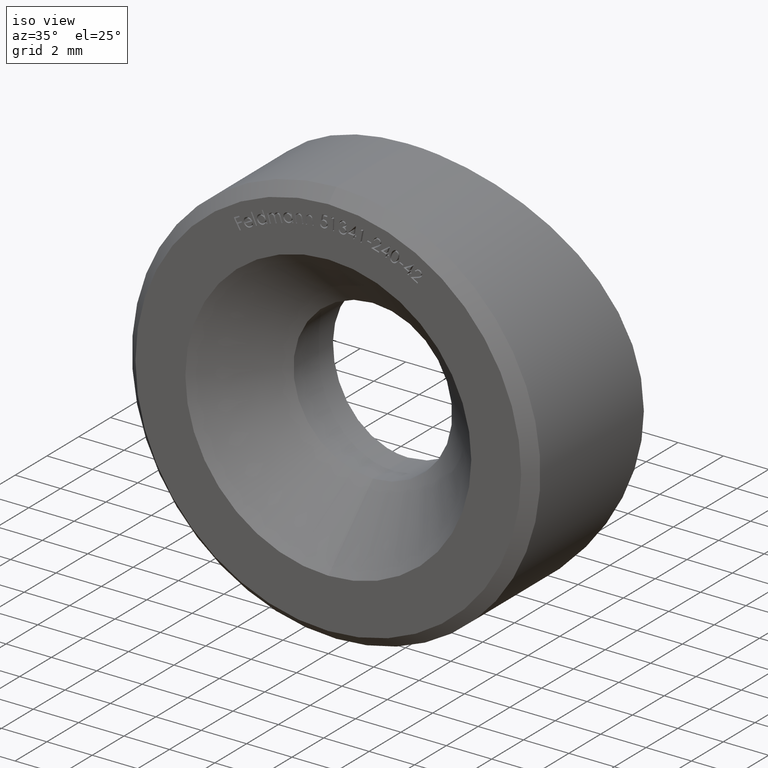
[diagram: clean part render]
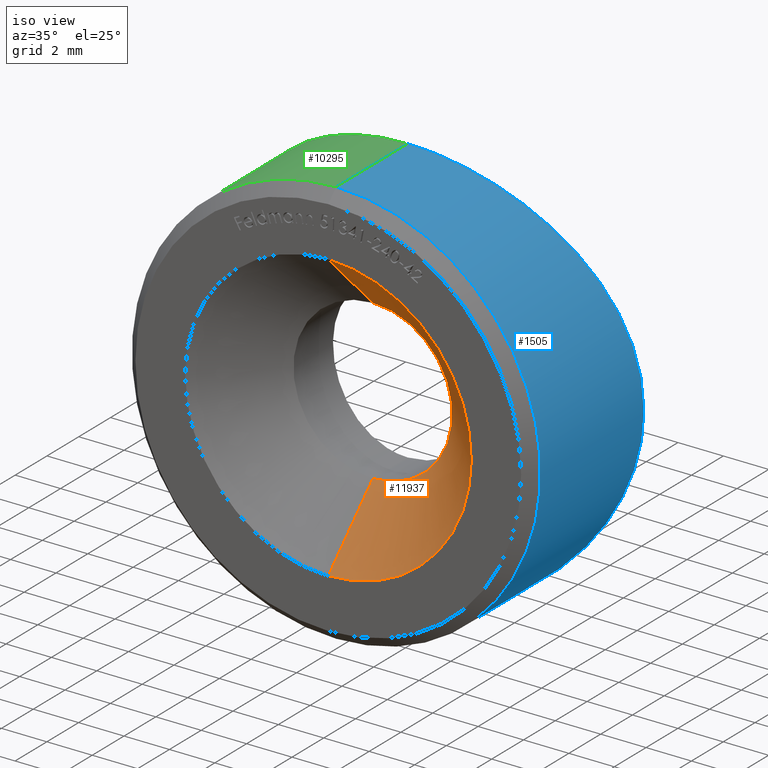
[diagram: same view with three faces highlighted in distinct colors, each labeled with its STEP entity id]
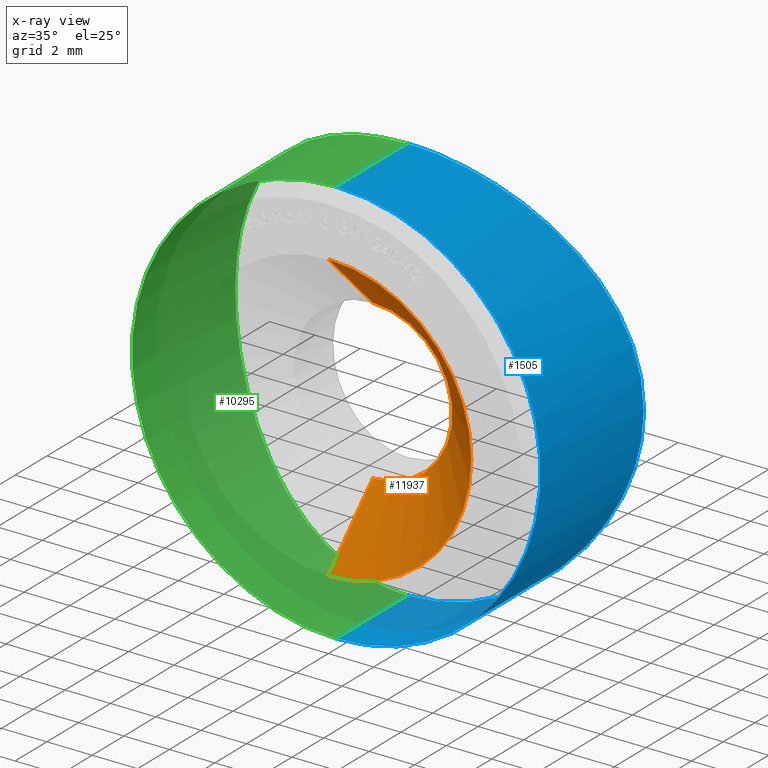
[diagram: x-ray of the same camera — body ghosted, the three highlighted faces saturated]
A machine part, iso view with three faces highlighted in distinct colors.
The next image is the same camera in x-ray (body ghosted, the three faces saturated) — at least one of them is partly hidden behind the body in this view.
Their STEP definitions:

[orange] entity #11937 — the highlighted conical surface has half-angle 45 deg.
#339 = AXIS2_PLACEMENT_3D ( 'NONE', #5555, #2351, #9475 ) ;
#728 = DIRECTION ( 'NONE',  ( 0.000000000000000000, 0.000000000000000000, -1.000000000000000000 ) ) ;
#1015 = EDGE_CURVE ( 'NONE', #3526, #12136, #8560, .T. ) ;
#1900 = CARTESIAN_POINT ( 'NONE',  ( 7.715274834628325378E-16, -8.673617379884035472E-16, 6.299999999999999822 ) ) ;
#1969 = CARTESIAN_POINT ( 'NONE',  ( 7.715274834628325378E-16, -8.673617379884035472E-16, 6.299999999999999822 ) ) ;
#1991 = CIRCLE ( 'NONE', #2304, 3.500000000000000000 ) ;
#2304 = AXIS2_PLACEMENT_3D ( 'NONE', #12708, #11739, #3653 ) ;
#2351 = DIRECTION ( 'NONE',  ( -0.000000000000000000, -1.000000000000000000, -0.000000000000000000 ) ) ;
#2744 = DIRECTION ( 'NONE',  ( -0.000000000000000000, -1.000000000000000000, -0.000000000000000000 ) ) ;
#3092 = EDGE_CURVE ( 'NONE', #7041, #3526, #3275, .T. ) ;
#3275 = LINE ( 'NONE', #13023, #5340 ) ;
#3526 = VERTEX_POINT ( 'NONE', #7931 ) ;
#3527 = CARTESIAN_POINT ( 'NONE',  ( 0.000000000000000000, 2.799999999999997602, -3.500000000000000000 ) ) ;
#3653 = DIRECTION ( 'NONE',  ( 0.000000000000000000, 0.000000000000000000, -1.000000000000000000 ) ) ;
#4409 = EDGE_LOOP ( 'NONE', ( #10183, #10585, #9485, #12491 ) ) ;
#4804 = CONICAL_SURFACE ( 'NONE', #9146, 6.299999999999999822, 0.7853981633974485010 ) ;
#5340 = VECTOR ( 'NONE', #13113, 999.9999999999998863 ) ;
#5555 = CARTESIAN_POINT ( 'NONE',  ( 0.000000000000000000, -8.673617379884035472E-16, 0.000000000000000000 ) ) ;
#6833 = EDGE_CURVE ( 'NONE', #9547, #12136, #10543, .T. ) ;
#7041 = VERTEX_POINT ( 'NONE', #3527 ) ;
#7931 = CARTESIAN_POINT ( 'NONE',  ( 0.000000000000000000, -8.673617379884035472E-16, -6.299999999999999822 ) ) ;
#8560 = CIRCLE ( 'NONE', #339, 6.299999999999999822 ) ;
#8828 = CARTESIAN_POINT ( 'NONE',  ( 0.000000000000000000, -8.673617379884035472E-16, 0.000000000000000000 ) ) ;
#9106 = FACE_OUTER_BOUND ( 'NONE', #4409, .T. ) ;
#9146 = AXIS2_PLACEMENT_3D ( 'NONE', #8828, #2744, #728 ) ;
#9475 = DIRECTION ( 'NONE',  ( 0.000000000000000000, 0.000000000000000000, -1.000000000000000000 ) ) ;
#9485 = ORIENTED_EDGE ( 'NONE', *, *, #3092, .T. ) ;
#9547 = VERTEX_POINT ( 'NONE', #11369 ) ;
#10183 = ORIENTED_EDGE ( 'NONE', *, *, #6833, .F. ) ;
#10543 = LINE ( 'NONE', #1969, #12115 ) ;
#10585 = ORIENTED_EDGE ( 'NONE', *, *, #13015, .F. ) ;
#10986 = DIRECTION ( 'NONE',  ( 8.659560562354936556E-17, -0.7071067811865473507, 0.7071067811865477948 ) ) ;
#11369 = CARTESIAN_POINT ( 'NONE',  ( 4.286263797015736595E-16, 2.799999999999997602, 3.500000000000000000 ) ) ;
#11739 = DIRECTION ( 'NONE',  ( -0.000000000000000000, -1.000000000000000000, -0.000000000000000000 ) ) ;
#11937 = ADVANCED_FACE ( 'NONE', ( #9106 ), #4804, .F. ) ;
#12115 = VECTOR ( 'NONE', #10986, 999.9999999999998863 ) ;
#12136 = VERTEX_POINT ( 'NONE', #1900 ) ;
#12491 = ORIENTED_EDGE ( 'NONE', *, *, #1015, .T. ) ;
#12708 = CARTESIAN_POINT ( 'NONE',  ( 0.000000000000000000, 2.799999999999997602, 0.000000000000000000 ) ) ;
#13015 = EDGE_CURVE ( 'NONE', #7041, #9547, #1991, .T. ) ;
#13023 = CARTESIAN_POINT ( 'NONE',  ( 0.000000000000000000, -8.673617379884035472E-16, -6.299999999999999822 ) ) ;
#13113 = DIRECTION ( 'NONE',  ( 0.000000000000000000, -0.7071067811865473507, -0.7071067811865477948 ) ) ;

[blue] entity #1505 — the highlighted cylindrical surface (partial cylindrical patch) has radius 9 mm, axis along (-0, -1, -0).
#247 = EDGE_LOOP ( 'NONE', ( #4486, #2974, #9532, #7672 ) ) ;
#590 = CYLINDRICAL_SURFACE ( 'NONE', #8822, 9.000000000000000000 ) ;
#652 = CARTESIAN_POINT ( 'NONE',  ( 5.950894307444039022, 5.847787092032352696, 6.776770896051599102 ) ) ;
#1425 = CARTESIAN_POINT ( 'NONE',  ( 3.201236851661946936, 5.241277928993054225, -8.416586300377323582 ) ) ;
#1505 = ADVANCED_FACE ( 'NONE', ( #10984 ), #590, .T. ) ;
#1558 = CARTESIAN_POINT ( 'NONE',  ( 8.533385061147304995, 6.791675246480365580, 2.921161065399778156 ) ) ;
#1640 = DIRECTION ( 'NONE',  ( -0.000000000000000000, -1.000000000000000000, -0.000000000000000000 ) ) ;
#1684 = VECTOR ( 'NONE', #11888, 1000.000000000000000 ) ;
#1685 = CARTESIAN_POINT ( 'NONE',  ( 3.736670627740368289, 5.330108033593750960, 8.192869673815865283 ) ) ;
#1887 = LINE ( 'NONE', #7730, #4292 ) ;
#1910 = CARTESIAN_POINT ( 'NONE',  ( 1.102182119232617714E-15, 0.5000000000000056621, 9.000000000000000000 ) ) ;
#2322 = LINE ( 'NONE', #2588, #1684 ) ;
#2356 = DIRECTION ( 'NONE',  ( -0.000000000000000000, -1.000000000000000000, -0.000000000000000000 ) ) ;
#2401 = CARTESIAN_POINT ( 'NONE',  ( 4.531352901498304497, 5.483878924124729437, -7.798104117224855081 ) ) ;
#2534 = CARTESIAN_POINT ( 'NONE',  ( 7.313069460956390877, 6.300514150201308894, -5.254070590124756635 ) ) ;
#2578 = CARTESIAN_POINT ( 'NONE',  ( 8.765216953880976547, 6.896759034376214181, -2.063786212828273570 ) ) ;
#2588 = CARTESIAN_POINT ( 'NONE',  ( 0.000000000000000000, 12.00000000000000000, -9.000000000000000000 ) ) ;
#2616 = CARTESIAN_POINT ( 'NONE',  ( 8.985476887790628808, 6.998378257453279794, 0.5925493789659639354 ) ) ;
#2670 = CARTESIAN_POINT ( 'NONE',  ( 8.079162393224693872, 6.598285831224371734, -4.008667575377401704 ) ) ;
#2974 = ORIENTED_EDGE ( 'NONE', *, *, #10322, .T. ) ;
#3034 = CIRCLE ( 'NONE', #6975, 9.000000000000000000 ) ;
#3301 = DIRECTION ( 'NONE',  ( 0.000000000000000000, 0.000000000000000000, 1.000000000000000000 ) ) ;
#3345 = CARTESIAN_POINT ( 'NONE',  ( 0.000000000000000000, 0.5000000000000056621, 0.000000000000000000 ) ) ;
#3427 = CARTESIAN_POINT ( 'NONE',  ( 5.498166174509200310, 5.724039982712047170, -7.131299142067265784 ) ) ;
#3529 = CARTESIAN_POINT ( 'NONE',  ( 6.768251941356695056, 6.108484183741391682, -5.939311286811442159 ) ) ;
#3533 = DIRECTION ( 'NONE',  ( 0.000000000000000000, 0.000000000000000000, -1.000000000000000000 ) ) ;
#3666 = CARTESIAN_POINT ( 'NONE',  ( 5.503122217084857937, 5.720587813788839071, 7.145554771257088156 ) ) ;
#4218 = DIRECTION ( 'NONE',  ( -0.000000000000000000, 1.000000000000000000, -0.000000000000000000 ) ) ;
#4286 = CARTESIAN_POINT ( 'NONE',  ( -8.711213837323821627E-17, 5.000000000000000000, -9.000000000000000000 ) ) ;
#4292 = VECTOR ( 'NONE', #1640, 1000.000000000000000 ) ;
#4486 = ORIENTED_EDGE ( 'NONE', *, *, #10198, .T. ) ;
#4549 = CARTESIAN_POINT ( 'NONE',  ( 7.803510929205667246, 6.485353026589257830, -4.522188408825448924 ) ) ;
#4599 = CARTESIAN_POINT ( 'NONE',  ( 4.773436371815511059, 5.542871094669145293, 7.635452310474521553 ) ) ;
#4637 = EDGE_CURVE ( 'NONE', #12973, #6302, #2322, .T. ) ;
#4644 = CARTESIAN_POINT ( 'NONE',  ( 0.5933890720346679526, 5.000000000000000000, 9.000000000000001776 ) ) ;
#4725 = CARTESIAN_POINT ( 'NONE',  ( 8.940731937358895820, 6.977100309098893227, -1.190075437836061623 ) ) ;
#5424 = CARTESIAN_POINT ( 'NONE',  ( 2.063687799209020568, 5.098674121252354752, -8.765201723261311528 ) ) ;
#5557 = CARTESIAN_POINT ( 'NONE',  ( 8.926111635704428338, 6.970709750180468234, 1.189302625270156177 ) ) ;
#5602 = CARTESIAN_POINT ( 'NONE',  ( 8.417399978128177196, 6.742292184308384506, -3.198897901575217695 ) ) ;
#5644 = CARTESIAN_POINT ( 'NONE',  ( 1.102205765333479302E-15, 5.000000000000001776, 9.000000000000000000 ) ) ;
#5694 = CARTESIAN_POINT ( 'NONE',  ( 9.000197485660869745, 7.005301636450295355, 0.2915881291376411499 ) ) ;
#5736 = CARTESIAN_POINT ( 'NONE',  ( 7.137730573692684821, 6.236757668303949842, -5.489759116818982321 ) ) ;
#5833 = CARTESIAN_POINT ( 'NONE',  ( 1.102205765333479302E-15, 5.000000000000001776, 9.000000000000000000 ) ) ;
#6302 = VERTEX_POINT ( 'NONE', #11376 ) ;
#6704 = CARTESIAN_POINT ( 'NONE',  ( 8.706750696824439473, 6.869998219929486893, 2.354395332776095806 ) ) ;
#6741 = CARTESIAN_POINT ( 'NONE',  ( 4.519225296665156044, 5.485597223729620886, 7.788647210821147304 ) ) ;
#6975 = AXIS2_PLACEMENT_3D ( 'NONE', #3345, #4218, #3301 ) ;
#7211 = VERTEX_POINT ( 'NONE', #1910 ) ;
#7370 = CARTESIAN_POINT ( 'NONE',  ( -8.711213837323821627E-17, 5.000000000000000000, -9.000000000000000000 ) ) ;
#7638 = CARTESIAN_POINT ( 'NONE',  ( 8.691438267407118445, 6.863300288605558741, -2.355182090629234448 ) ) ;
#7672 = ORIENTED_EDGE ( 'NONE', *, *, #4637, .F. ) ;
#7730 = CARTESIAN_POINT ( 'NONE',  ( 1.102182119232617714E-15, 12.00000000000000000, 9.000000000000000000 ) ) ;
#7780 = CARTESIAN_POINT ( 'NONE',  ( 4.001315330663515191, 5.379352668944862970, 8.066963386631146093 ) ) ;
#8036 = VERTEX_POINT ( 'NONE', #5833 ) ;
#8348 = EDGE_CURVE ( 'NONE', #7211, #6302, #3034, .T. ) ;
#8402 = CARTESIAN_POINT ( 'NONE',  ( 0.6023680047795308967, 5.000000000000001776, -9.000000000000005329 ) ) ;
#8487 = CARTESIAN_POINT ( 'NONE',  ( 2.920474601856164476, 5.200163174101231967, -8.518185119866812371 ) ) ;
#8536 = CARTESIAN_POINT ( 'NONE',  ( 4.016827951074798619, 5.376722493035036798, -8.075423365992350000 ) ) ;
#8626 = CARTESIAN_POINT ( 'NONE',  ( 6.573466969556617023, 6.043719117738677760, -6.154151738390522652 ) ) ;
#8664 = CARTESIAN_POINT ( 'NONE',  ( 2.362258398571402296, 5.123755013154033477, 8.705150679785440104 ) ) ;
#8822 = AXIS2_PLACEMENT_3D ( 'NONE', #12675, #2356, #3533 ) ;
#9287 = B_SPLINE_CURVE_WITH_KNOTS ( 'NONE', 3,
 ( #7370, #8402, #9476, #5424, #12542, #8487, #1425, #8536, #2401, #10620, #3427, #11831, #10840, #8626, #3529, #5736, #2534, #4549, #2670, #5602, #10671, #7638, #2578, #4725, #12844, #5694, #2616, #5557, #9716, #6704, #1558, #11750, #10794, #11658, #10751, #652, #3666, #4599, #6741, #7780, #1685, #9797, #8664, #12669, #4644, #5644 ),
 .UNSPECIFIED., .F., .F.,
 ( 4, 2, 2, 2, 2, 2, 2, 2, 2, 2, 2, 2, 2, 2, 2, 2, 2, 2, 2, 2, 2, 2, 4 ),
 ( 1.410750742896341594E-19, 0.001780017036675978501, 0.002670025555013966993, 0.003560034073351955701, 0.005340051110027929648, 0.006230059628365916188, 0.007120068146703903596, 0.008010076665041889268, 0.008900085183379875808, 0.01068010222005584889, 0.01157011073839383543, 0.01246011925673182370, 0.01424013629340780025, 0.01513014481174578853, 0.01602015333008377854, 0.01780017036675975509, 0.01958018740343573164, 0.02136020444011170819, 0.02314022147678768127, 0.02403022999512566954, 0.02492023851346365781, 0.02670025555013962743, 0.02848027258681560051 ),
 .UNSPECIFIED. ) ;
#9476 = CARTESIAN_POINT ( 'NONE',  ( 1.193336431064577763, 5.025605254054330118, -8.940146670528569928 ) ) ;
#9532 = ORIENTED_EDGE ( 'NONE', *, *, #8348, .T. ) ;
#9716 = CARTESIAN_POINT ( 'NONE',  ( 8.881823224659211036, 6.950134147624567049, 1.483538835291111191 ) ) ;
#9797 = CARTESIAN_POINT ( 'NONE',  ( 2.925613582454151373, 5.195686694278657036, 8.531357960814737851 ) ) ;
#10198 = EDGE_CURVE ( 'NONE', #12973, #8036, #9287, .T. ) ;
#10322 = EDGE_CURVE ( 'NONE', #8036, #7211, #1887, .T. ) ;
#10620 = CARTESIAN_POINT ( 'NONE',  ( 5.261251621140059953, 5.661695803545239158, -7.307881232908767899 ) ) ;
#10671 = CARTESIAN_POINT ( 'NONE',  ( 8.517504256587193012, 6.786057172129877912, -2.922345474988994329 ) ) ;
#10751 = CARTESIAN_POINT ( 'NONE',  ( 6.773059061270842562, 6.106434257152071332, 5.955118620857086320 ) ) ;
#10794 = CARTESIAN_POINT ( 'NONE',  ( 7.798571145882971400, 6.483440302711156455, 4.530130009987125561 ) ) ;
#10840 = CARTESIAN_POINT ( 'NONE',  ( 6.163763077976558868, 5.914681374870199626, -6.564455524836763090 ) ) ;
#10984 = FACE_OUTER_BOUND ( 'NONE', #247, .T. ) ;
#11376 = CARTESIAN_POINT ( 'NONE',  ( 0.000000000000000000, 0.5000000000000056621, -9.000000000000000000 ) ) ;
#11658 = CARTESIAN_POINT ( 'NONE',  ( 7.149048956074048888, 6.238749106385900411, 5.498262348091528473 ) ) ;
#11750 = CARTESIAN_POINT ( 'NONE',  ( 8.076187423238080143, 6.597017394166105220, 4.015848512649688118 ) ) ;
#11831 = CARTESIAN_POINT ( 'NONE',  ( 5.948845107420104306, 5.850405119511203900, -6.759918684724715909 ) ) ;
#11888 = DIRECTION ( 'NONE',  ( -0.000000000000000000, -1.000000000000000000, -0.000000000000000000 ) ) ;
#12542 = CARTESIAN_POINT ( 'NONE',  ( 2.351102510118275202, 5.128819786225156996, -8.692581125495630445 ) ) ;
#12669 = CARTESIAN_POINT ( 'NONE',  ( 1.185945749614562894, 5.024969889840958714, 8.941669071172402283 ) ) ;
#12675 = CARTESIAN_POINT ( 'NONE',  ( 0.000000000000000000, 12.00000000000000000, 0.000000000000000000 ) ) ;
#12844 = CARTESIAN_POINT ( 'NONE',  ( 8.999598962355413789, 7.005021002590619439, -0.6012754681276702984 ) ) ;
#12973 = VERTEX_POINT ( 'NONE', #4286 ) ;

[green] entity #10295 — the highlighted cylindrical surface (partial cylindrical patch) has radius 9 mm, axis along (-0, -1, -0).
#106 = CARTESIAN_POINT ( 'NONE',  ( -0.3009189647580830518, 5.000000000000001776, -9.000000000000001776 ) ) ;
#147 = CARTESIAN_POINT ( 'NONE',  ( -8.999905445151091143, 7.005164705339569586, 0.2995324990175526891 ) ) ;
#611 = DIRECTION ( 'NONE',  ( -0.000000000000000000, -1.000000000000000000, -0.000000000000000000 ) ) ;
#1009 = CARTESIAN_POINT ( 'NONE',  ( -4.778794297280158254, 5.544128821331860024, 7.632033403245348069 ) ) ;
#1101 = ORIENTED_EDGE ( 'NONE', *, *, #10322, .F. ) ;
#1103 = CARTESIAN_POINT ( 'NONE',  ( -8.880688484592264231, 6.949609545792498899, 1.490378324176704128 ) ) ;
#1177 = CARTESIAN_POINT ( 'NONE',  ( -4.535962555106799243, 5.484989583847495354, -7.795054722870342623 ) ) ;
#1224 = CARTESIAN_POINT ( 'NONE',  ( -7.150489299978478819, 6.239282207627340426, 5.496221675087335612 ) ) ;
#1264 = CARTESIAN_POINT ( 'NONE',  ( -9.000187751502096489, 7.005297072345202380, -0.5905009705526770292 ) ) ;
#1375 = AXIS2_PLACEMENT_3D ( 'NONE', #3811, #6856, #13003 ) ;
#1640 = DIRECTION ( 'NONE',  ( -0.000000000000000000, -1.000000000000000000, -0.000000000000000000 ) ) ;
#1684 = VECTOR ( 'NONE', #11888, 1000.000000000000000 ) ;
#1887 = LINE ( 'NONE', #7730, #4292 ) ;
#1910 = CARTESIAN_POINT ( 'NONE',  ( 1.102182119232617714E-15, 0.5000000000000056621, 9.000000000000000000 ) ) ;
#2008 = CIRCLE ( 'NONE', #1375, 9.000000000000000000 ) ;
#2115 = CARTESIAN_POINT ( 'NONE',  ( -5.945509795412031728, 5.849434456094836143, 6.762829383681002504 ) ) ;
#2157 = CARTESIAN_POINT ( 'NONE',  ( -7.636236501007310551, 6.422289563636393694, 4.772041448204875635 ) ) ;
#2200 = CARTESIAN_POINT ( 'NONE',  ( -8.925628558626204523, 6.970485342432202636, 1.192827234166816019 ) ) ;
#2242 = CARTESIAN_POINT ( 'NONE',  ( -8.706415660134124934, 6.869838397457708190, -2.357563003050730632 ) ) ;
#2263 = B_SPLINE_CURVE_WITH_KNOTS ( 'NONE', 3,
 ( #8083, #3021, #10161, #12266, #11085, #4048, #7095, #5074, #12171, #6085, #1009, #9322, #8331, #2115, #8291, #11463, #1224, #2157, #8374, #5353, #12467, #7349, #6253, #1103, #2200, #3223, #147, #1264, #4270, #2242, #4227, #9367, #3264, #2281, #5189, #10379, #9246, #11337, #11377, #1177, #10419, #10293, #5275, #5234, #6214, #7183, #106, #12388 ),
 .UNSPECIFIED., .F., .F.,
 ( 4, 2, 2, 2, 2, 2, 2, 2, 2, 2, 2, 2, 2, 2, 2, 2, 2, 2, 2, 2, 2, 2, 2, 4 ),
 ( 0.02848027258681560051, 0.02936949791033579074, 0.03025872323385597751, 0.03203717388089635798, 0.03292639920441654822, 0.03381562452793673151, 0.03470484985145692175, 0.03559407517497711199, 0.03737252582201748552, 0.03826175114553766882, 0.03915097646905785211, 0.04092942711609822565, 0.04181865243961840894, 0.04270787776313859918, 0.04448632841017896578, 0.04626477905721933237, 0.04804322970425969896, 0.04982168035130006556, 0.05071090567482025580, 0.05160013099834044603, 0.05337858164538081263, 0.05515703229242117922, 0.05604625761594136252, 0.05693548293946154581 ),
 .UNSPECIFIED. ) ;
#2281 = CARTESIAN_POINT ( 'NONE',  ( -7.149034228485849241, 6.238742662092878533, -5.498294302312316084 ) ) ;
#2322 = LINE ( 'NONE', #2588, #1684 ) ;
#2588 = CARTESIAN_POINT ( 'NONE',  ( 0.000000000000000000, 12.00000000000000000, -9.000000000000000000 ) ) ;
#3021 = CARTESIAN_POINT ( 'NONE',  ( -0.2964334490521082777, 5.000000000000000000, 9.000000000000005329 ) ) ;
#3223 = CARTESIAN_POINT ( 'NONE',  ( -8.985179175337009383, 6.998238770381803420, 0.5968560665887949757 ) ) ;
#3264 = CARTESIAN_POINT ( 'NONE',  ( -7.798681730541688673, 6.483482858883814259, -4.529955176446847531 ) ) ;
#3282 = EDGE_LOOP ( 'NONE', ( #1101, #5343, #3991, #5484 ) ) ;
#3811 = CARTESIAN_POINT ( 'NONE',  ( 0.000000000000000000, 0.5000000000000056621, 0.000000000000000000 ) ) ;
#3991 = ORIENTED_EDGE ( 'NONE', *, *, #4637, .T. ) ;
#4048 = CARTESIAN_POINT ( 'NONE',  ( -2.360921398637982449, 5.123750156401903233, 8.705153755182527320 ) ) ;
#4227 = CARTESIAN_POINT ( 'NONE',  ( -8.532837768163394898, 6.791469826741912463, -2.921585112813852358 ) ) ;
#4270 = CARTESIAN_POINT ( 'NONE',  ( -8.942269996938884802, 6.977808956071738677, -1.181348493133574262 ) ) ;
#4286 = CARTESIAN_POINT ( 'NONE',  ( -8.711213837323821627E-17, 5.000000000000000000, -9.000000000000000000 ) ) ;
#4292 = VECTOR ( 'NONE', #1640, 1000.000000000000000 ) ;
#4637 = EDGE_CURVE ( 'NONE', #12973, #6302, #2322, .T. ) ;
#5074 = CARTESIAN_POINT ( 'NONE',  ( -3.742138319472866570, 5.331058560199007701, 8.190460172740543499 ) ) ;
#5189 = CARTESIAN_POINT ( 'NONE',  ( -6.780744227032805327, 6.108980968700559622, -5.946691944771044902 ) ) ;
#5234 = CARTESIAN_POINT ( 'NONE',  ( -1.491460967790996239, 5.050533158627068531, -8.880471131629562365 ) ) ;
#5275 = CARTESIAN_POINT ( 'NONE',  ( -2.359948464335842377, 5.123751348572790576, -8.705144260624257058 ) ) ;
#5343 = ORIENTED_EDGE ( 'NONE', *, *, #12128, .T. ) ;
#5353 = CARTESIAN_POINT ( 'NONE',  ( -8.066124459004573310, 6.593871881070151098, 4.003048471266071218 ) ) ;
#5484 = ORIENTED_EDGE ( 'NONE', *, *, #12429, .T. ) ;
#5833 = CARTESIAN_POINT ( 'NONE',  ( 1.102205765333479302E-15, 5.000000000000001776, 9.000000000000000000 ) ) ;
#6085 = CARTESIAN_POINT ( 'NONE',  ( -4.528699389792135932, 5.487667328847130932, 7.783145565688802670 ) ) ;
#6214 = CARTESIAN_POINT ( 'NONE',  ( -1.198054577579931390, 5.031785081864057041, -8.924912206474560961 ) ) ;
#6253 = CARTESIAN_POINT ( 'NONE',  ( -8.704730878304371089, 6.869084275814923757, 2.362008123287466788 ) ) ;
#6302 = VERTEX_POINT ( 'NONE', #11376 ) ;
#6616 = CARTESIAN_POINT ( 'NONE',  ( 0.000000000000000000, 12.00000000000000000, 0.000000000000000000 ) ) ;
#6856 = DIRECTION ( 'NONE',  ( -0.000000000000000000, 1.000000000000000000, -0.000000000000000000 ) ) ;
#7095 = CARTESIAN_POINT ( 'NONE',  ( -2.924552147243139721, 5.195422907906540821, 8.532053850704441444 ) ) ;
#7183 = CARTESIAN_POINT ( 'NONE',  ( -0.6030836316957844945, 5.006488074780196307, -8.984747230574683385 ) ) ;
#7211 = VERTEX_POINT ( 'NONE', #1910 ) ;
#7349 = CARTESIAN_POINT ( 'NONE',  ( -8.532378343486362482, 6.791268359766139184, 2.922873668129468250 ) ) ;
#7450 = FACE_OUTER_BOUND ( 'NONE', #3282, .T. ) ;
#7730 = CARTESIAN_POINT ( 'NONE',  ( 1.102182119232617714E-15, 12.00000000000000000, 9.000000000000000000 ) ) ;
#8036 = VERTEX_POINT ( 'NONE', #5833 ) ;
#8083 = CARTESIAN_POINT ( 'NONE',  ( 1.102205765333479302E-15, 5.000000000000001776, 9.000000000000000000 ) ) ;
#8291 = CARTESIAN_POINT ( 'NONE',  ( -6.163233675632006303, 5.914501516531039726, 6.565061745348237388 ) ) ;
#8331 = CARTESIAN_POINT ( 'NONE',  ( -5.495492606631183108, 5.723326302971409874, 7.133337858995711045 ) ) ;
#8374 = CARTESIAN_POINT ( 'NONE',  ( -7.787120209274807969, 6.481395017640133815, 4.521893375319820940 ) ) ;
#8714 = DIRECTION ( 'NONE',  ( 0.000000000000000000, 0.000000000000000000, -1.000000000000000000 ) ) ;
#9246 = CARTESIAN_POINT ( 'NONE',  ( -5.943050040245521082, 5.848714943621047269, -6.764992603206123611 ) ) ;
#9322 = CARTESIAN_POINT ( 'NONE',  ( -5.262191614882394397, 5.661956556338868296, 7.307129957256235819 ) ) ;
#9367 = CARTESIAN_POINT ( 'NONE',  ( -8.080748568436822765, 6.598932007725408333, -4.005806101512831674 ) ) ;
#10161 = CARTESIAN_POINT ( 'NONE',  ( -0.5933654931180759595, 5.006214453234863804, 8.985391735092923327 ) ) ;
#10293 = CARTESIAN_POINT ( 'NONE',  ( -2.923398892352810918, 5.195184328877346047, -8.532671750191317628 ) ) ;
#10295 = ADVANCED_FACE ( 'NONE', ( #7450 ), #12851, .T. ) ;
#10322 = EDGE_CURVE ( 'NONE', #8036, #7211, #1887, .T. ) ;
#10379 = CARTESIAN_POINT ( 'NONE',  ( -6.161153869097450553, 5.913870070946894764, -6.567007868193583064 ) ) ;
#10419 = CARTESIAN_POINT ( 'NONE',  ( -4.019336509877202701, 5.377092506520189552, -8.074508177015534471 ) ) ;
#11085 = CARTESIAN_POINT ( 'NONE',  ( -1.486471490104402937, 5.050154448810137531, 8.881374637244258352 ) ) ;
#11337 = CARTESIAN_POINT ( 'NONE',  ( -5.492841792478552421, 5.722614027428781114, -7.135380700782325114 ) ) ;
#11376 = CARTESIAN_POINT ( 'NONE',  ( 0.000000000000000000, 0.5000000000000056621, -9.000000000000000000 ) ) ;
#11377 = CARTESIAN_POINT ( 'NONE',  ( -5.259692949055501998, 5.661322260371404624, -7.308904753116186370 ) ) ;
#11463 = CARTESIAN_POINT ( 'NONE',  ( -6.782893369670290440, 6.109705084575130840, 5.944265957912699960 ) ) ;
#11888 = DIRECTION ( 'NONE',  ( -0.000000000000000000, -1.000000000000000000, -0.000000000000000000 ) ) ;
#12128 = EDGE_CURVE ( 'NONE', #8036, #12973, #2263, .T. ) ;
#12171 = CARTESIAN_POINT ( 'NONE',  ( -4.010974858901461104, 5.381212246509870845, 8.062168054628072511 ) ) ;
#12266 = CARTESIAN_POINT ( 'NONE',  ( -1.188250110291133588, 5.031233146777608134, 8.926220304075661360 ) ) ;
#12388 = CARTESIAN_POINT ( 'NONE',  ( -8.711213837323821627E-17, 5.000000000000000000, -9.000000000000000000 ) ) ;
#12429 = EDGE_CURVE ( 'NONE', #6302, #7211, #2008, .T. ) ;
#12467 = CARTESIAN_POINT ( 'NONE',  ( -8.193363873119132279, 6.646896040208382317, 3.735633294600276599 ) ) ;
#12513 = AXIS2_PLACEMENT_3D ( 'NONE', #6616, #611, #8714 ) ;
#12851 = CYLINDRICAL_SURFACE ( 'NONE', #12513, 9.000000000000000000 ) ;
#12973 = VERTEX_POINT ( 'NONE', #4286 ) ;
#13003 = DIRECTION ( 'NONE',  ( 0.000000000000000000, 0.000000000000000000, 1.000000000000000000 ) ) ;